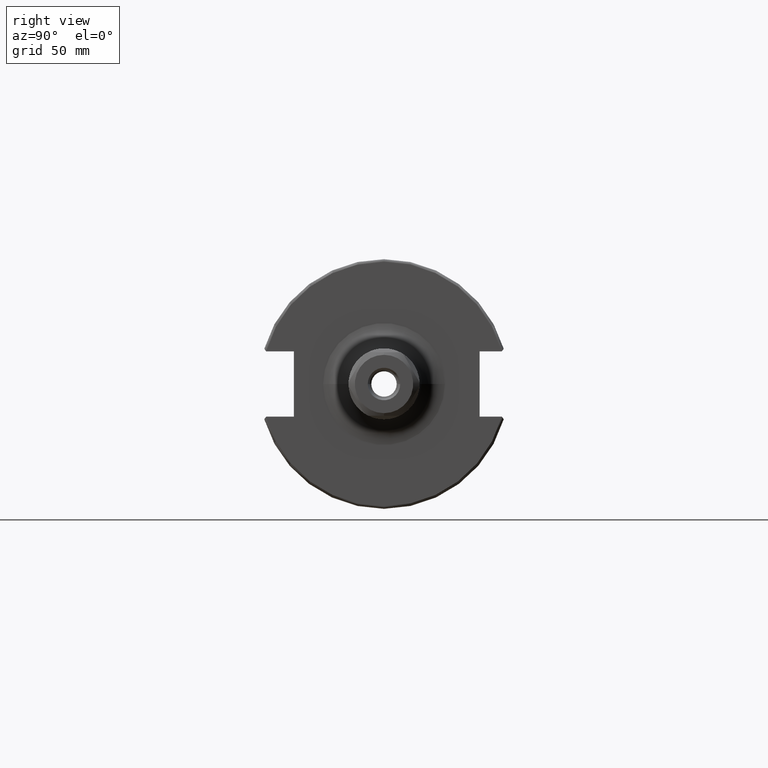
[diagram: clean part render]
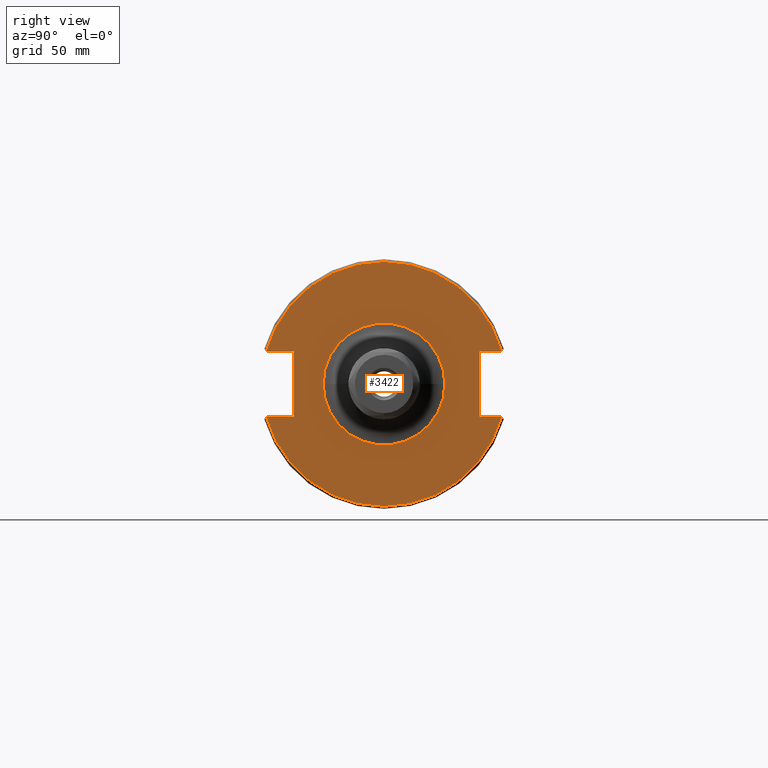
[diagram: same view with one face highlighted and labeled with its STEP entity id]
A machine part, right view. The second image highlights one B-rep face of the part: STEP entity #3422.
In plain terms, the highlighted planar face has unit normal (1, 0, 0).
Its self-contained STEP definition (entity closure, byte-faithful):
#894=DIRECTION('',(0.E0,-5.991552558453E-1,-8.006328617993E-1));
#895=VECTOR('',#894,1.438537912045E-3);
#896=CARTESIAN_POINT('',(7.5E-1,-1.828153385619E0,-5.059055118110E-1));
#897=LINE('',#896,#895);
#898=DIRECTION('',(0.E0,1.E0,0.E0));
#899=VECTOR('',#898,4.305155903438E-1);
#900=CARTESIAN_POINT('',(7.5E-1,-1.828153385619E0,-5.059055118110E-1));
#901=LINE('',#900,#899);
#902=DIRECTION('',(0.E0,0.E0,-1.E0));
#903=VECTOR('',#902,1.011811023622E0);
#904=CARTESIAN_POINT('',(7.5E-1,-1.397637795276E0,5.059055118110E-1));
#905=LINE('',#904,#903);
#906=DIRECTION('',(0.E0,1.E0,0.E0));
#907=VECTOR('',#906,4.305155903438E-1);
#908=CARTESIAN_POINT('',(7.5E-1,-1.828153385619E0,5.059055118110E-1));
#909=LINE('',#908,#907);
#910=DIRECTION('',(0.E0,5.991552558456E-1,-8.006328617991E-1));
#911=VECTOR('',#910,1.438537912044E-3);
#912=CARTESIAN_POINT('',(7.5E-1,-1.829015293170E0,5.070572525364E-1));
#913=LINE('',#912,#911);
#914=DIRECTION('',(0.E0,5.991552558459E-1,8.006328617989E-1));
#915=VECTOR('',#914,1.438537912045E-3);
#916=CARTESIAN_POINT('',(7.5E-1,1.828153385619E0,5.059055118110E-1));
#917=LINE('',#916,#915);
#918=DIRECTION('',(0.E0,-1.E0,0.E0));
#919=VECTOR('',#918,3.439014171155E-1);
#920=CARTESIAN_POINT('',(7.5E-1,1.828153385619E0,5.059055118110E-1));
#921=LINE('',#920,#919);
#922=DIRECTION('',(0.E0,0.E0,-1.E0));
#923=VECTOR('',#922,1.011811023622E0);
#924=CARTESIAN_POINT('',(7.5E-1,1.484251968504E0,5.059055118110E-1));
#925=LINE('',#924,#923);
#926=DIRECTION('',(0.E0,-1.E0,0.E0));
#927=VECTOR('',#926,3.439014171155E-1);
#928=CARTESIAN_POINT('',(7.5E-1,1.828153385619E0,-5.059055118110E-1));
#929=LINE('',#928,#927);
#930=DIRECTION('',(0.E0,-5.991552558457E-1,8.006328617990E-1));
#931=VECTOR('',#930,1.438537912044E-3);
#932=CARTESIAN_POINT('',(7.5E-1,1.829015293170E0,-5.070572525363E-1));
#933=LINE('',#932,#931);
#934=CARTESIAN_POINT('',(7.5E-1,0.E0,0.E0));
#935=DIRECTION('',(1.E0,0.E0,0.E0));
#936=DIRECTION('',(0.E0,-1.E0,0.E0));
#937=AXIS2_PLACEMENT_3D('',#934,#935,#936);
#939=CARTESIAN_POINT('',(7.5E-1,0.E0,0.E0));
#940=DIRECTION('',(1.E0,0.E0,0.E0));
#941=DIRECTION('',(0.E0,1.E0,0.E0));
#942=AXIS2_PLACEMENT_3D('',#939,#940,#941);
#949=CARTESIAN_POINT('',(7.5E-1,0.E0,0.E0));
#950=DIRECTION('',(1.E0,0.E0,0.E0));
#951=DIRECTION('',(0.E0,-9.636540006165E-1,-2.671534523374E-1));
#952=AXIS2_PLACEMENT_3D('',#949,#950,#951);
#1596=CARTESIAN_POINT('',(7.5E-1,0.E0,0.E0));
#1597=DIRECTION('',(1.E0,0.E0,0.E0));
#1598=DIRECTION('',(0.E0,9.636540006165E-1,2.671534523374E-1));
#1599=AXIS2_PLACEMENT_3D('',#1596,#1597,#1598);
#1601=CARTESIAN_POINT('',(7.5E-1,-1.829015293170E0,5.070572525364E-1));
#1908=CARTESIAN_POINT('',(7.5E-1,1.484251968504E0,5.059055118110E-1));
#1909=CARTESIAN_POINT('',(7.5E-1,1.484251968504E0,-5.059055118110E-1));
#1910=VERTEX_POINT('',#1908);
#1911=VERTEX_POINT('',#1909);
#1912=CARTESIAN_POINT('',(7.5E-1,-1.397637795276E0,5.059055118110E-1));
#1913=CARTESIAN_POINT('',(7.5E-1,-1.397637795276E0,-5.059055118110E-1));
#1914=VERTEX_POINT('',#1912);
#1915=VERTEX_POINT('',#1913);
#1916=CARTESIAN_POINT('',(7.5E-1,1.828153385619E0,5.059055118110E-1));
#1917=VERTEX_POINT('',#1916);
#1918=CARTESIAN_POINT('',(7.5E-1,1.828153385619E0,-5.059055118110E-1));
#1919=VERTEX_POINT('',#1918);
#1920=CARTESIAN_POINT('',(7.5E-1,-1.828153385619E0,5.059055118110E-1));
#1921=VERTEX_POINT('',#1920);
#1922=CARTESIAN_POINT('',(7.5E-1,-1.828153385619E0,-5.059055118110E-1));
#1923=VERTEX_POINT('',#1922);
#2162=CARTESIAN_POINT('',(7.5E-1,-1.829015293170E0,-5.070572525363E-1));
#2163=CARTESIAN_POINT('',(7.5E-1,1.829015293170E0,-5.070572525363E-1));
#2164=VERTEX_POINT('',#2162);
#2165=VERTEX_POINT('',#2163);
#2166=VERTEX_POINT('',#1601);
#2170=CARTESIAN_POINT('',(7.5E-1,1.829015293170E0,5.070572525364E-1));
#2171=VERTEX_POINT('',#2170);
#2219=CARTESIAN_POINT('',(7.5E-1,-9.45E-1,0.E0));
#2220=CARTESIAN_POINT('',(7.5E-1,9.45E-1,0.E0));
#2221=VERTEX_POINT('',#2219);
#2222=VERTEX_POINT('',#2220);
#3386=CARTESIAN_POINT('',(7.5E-1,0.E0,0.E0));
#3387=DIRECTION('',(1.E0,0.E0,0.E0));
#3388=DIRECTION('',(0.E0,0.E0,1.E0));
#3389=AXIS2_PLACEMENT_3D('',#3386,#3387,#3388);
#3390=PLANE('',#3389);
#3392=ORIENTED_EDGE('',*,*,#3391,.F.);
#3394=ORIENTED_EDGE('',*,*,#3393,.F.);
#3396=ORIENTED_EDGE('',*,*,#3395,.T.);
#3398=ORIENTED_EDGE('',*,*,#3397,.F.);
#3400=ORIENTED_EDGE('',*,*,#3399,.F.);
#3402=ORIENTED_EDGE('',*,*,#3401,.F.);
#3404=ORIENTED_EDGE('',*,*,#3403,.F.);
#3406=ORIENTED_EDGE('',*,*,#3405,.F.);
#3408=ORIENTED_EDGE('',*,*,#3407,.T.);
#3410=ORIENTED_EDGE('',*,*,#3409,.T.);
#3412=ORIENTED_EDGE('',*,*,#3411,.F.);
#3414=ORIENTED_EDGE('',*,*,#3413,.F.);
#3415=EDGE_LOOP('',(#3392,#3394,#3396,#3398,#3400,#3402,#3404,#3406,#3408,#3410,
#3412,#3414));
#3416=FACE_OUTER_BOUND('',#3415,.F.);
#3418=ORIENTED_EDGE('',*,*,#3417,.T.);
#3419=ORIENTED_EDGE('',*,*,#3376,.T.);
#3420=EDGE_LOOP('',(#3418,#3419));
#3421=FACE_BOUND('',#3420,.F.);
#3422=ADVANCED_FACE('',(#3416,#3421),#3390,.T.);
#938=CIRCLE('',#937,9.45E-1);
#943=CIRCLE('',#942,9.45E-1);
#953=CIRCLE('',#952,1.898E0);
#1600=CIRCLE('',#1599,1.898E0);
#3376=EDGE_CURVE('',#2222,#2221,#943,.T.);
#3391=EDGE_CURVE('',#2164,#2165,#953,.T.);
#3393=EDGE_CURVE('',#1923,#2164,#897,.T.);
#3395=EDGE_CURVE('',#1923,#1915,#901,.T.);
#3397=EDGE_CURVE('',#1914,#1915,#905,.T.);
#3399=EDGE_CURVE('',#1921,#1914,#909,.T.);
#3401=EDGE_CURVE('',#2166,#1921,#913,.T.);
#3403=EDGE_CURVE('',#2171,#2166,#1600,.T.);
#3405=EDGE_CURVE('',#1917,#2171,#917,.T.);
#3407=EDGE_CURVE('',#1917,#1910,#921,.T.);
#3409=EDGE_CURVE('',#1910,#1911,#925,.T.);
#3411=EDGE_CURVE('',#1919,#1911,#929,.T.);
#3413=EDGE_CURVE('',#2165,#1919,#933,.T.);
#3417=EDGE_CURVE('',#2221,#2222,#938,.T.);